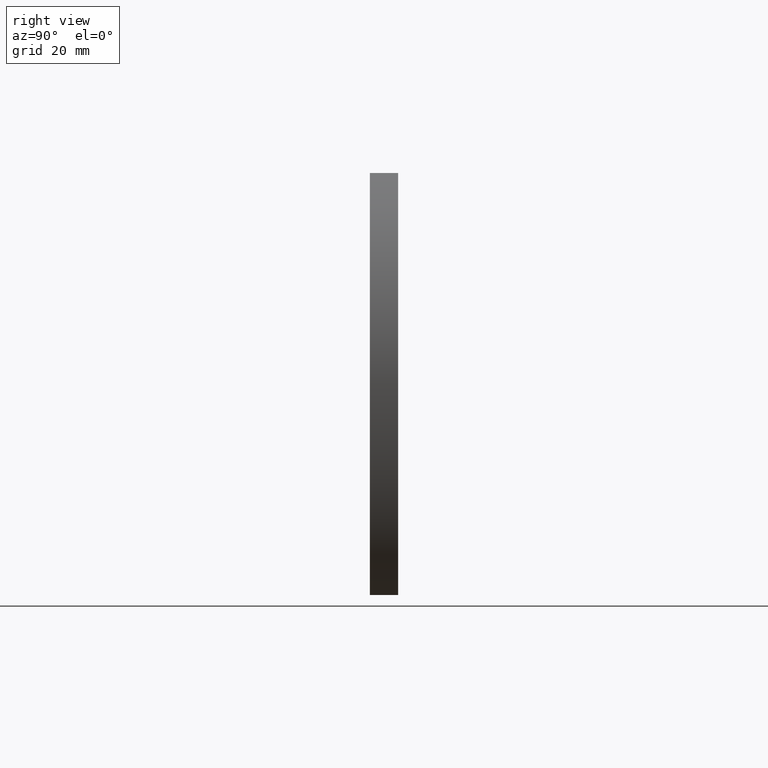
[diagram: clean part render]
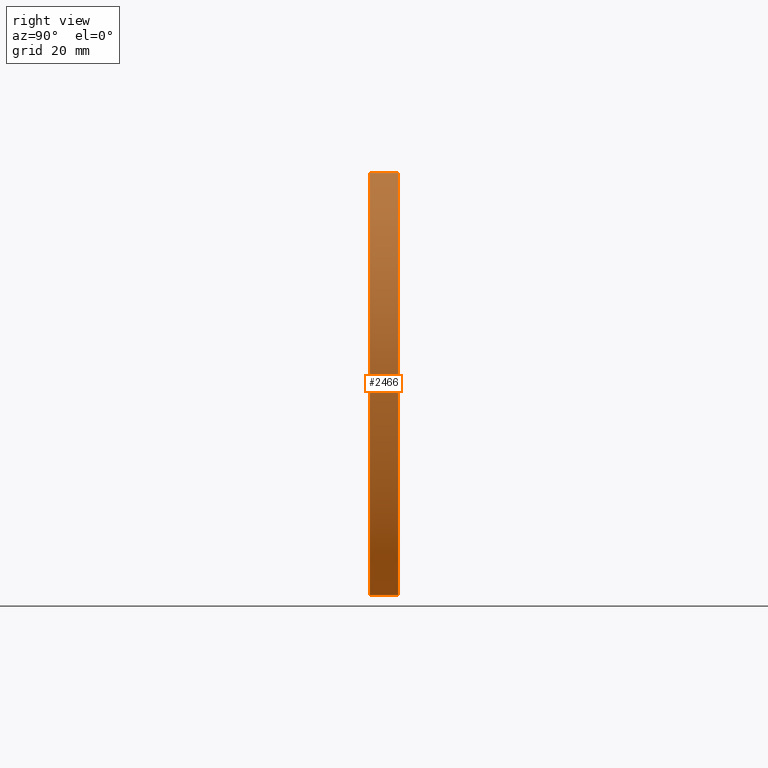
[diagram: same view with one face highlighted and labeled with its STEP entity id]
A machine part, right view. The second image highlights one B-rep face of the part: STEP entity #2466.
In plain terms, the highlighted cylindrical surface (partial cylindrical patch) has radius 94.4709 mm, axis along (-0, -1, -0).
Its self-contained STEP definition (entity closure, byte-faithful):
#387 = CARTESIAN_POINT ( 'NONE',  ( 63.49999999999998600, 8.000000000000000000, 60.00000000000002800 ) ) ;
#463 = VERTEX_POINT ( 'NONE', #1040 ) ;
#723 = CARTESIAN_POINT ( 'NONE',  ( -9.470930232558071500, 0.0000000000000000000, 0.0000000000000000000 ) ) ;
#877 = DIRECTION ( 'NONE',  ( 0.0000000000000000000, 1.000000000000000000, -0.0000000000000000000 ) ) ;
#1040 = CARTESIAN_POINT ( 'NONE',  ( 63.50000000000001400, 0.0000000000000000000, -59.99999999999997200 ) ) ;
#1106 = VERTEX_POINT ( 'NONE', #4754 ) ;
#1409 = LINE ( 'NONE', #7651, #9926 ) ;
#1824 = CIRCLE ( 'NONE', #3167, 94.47093023255808900 ) ;
#2466 = ADVANCED_FACE ( 'NONE', ( #6155 ), #9479, .T. ) ;
#2568 = DIRECTION ( 'NONE',  ( -0.0000000000000000000, -1.000000000000000000, -0.0000000000000000000 ) ) ;
#2570 = DIRECTION ( 'NONE',  ( 0.0000000000000000000, 0.0000000000000000000, -1.000000000000000000 ) ) ;
#2887 = ORIENTED_EDGE ( 'NONE', *, *, #8786, .T. ) ;
#3167 = AXIS2_PLACEMENT_3D ( 'NONE', #723, #877, #2570 ) ;
#3301 = AXIS2_PLACEMENT_3D ( 'NONE', #5023, #9353, #8446 ) ;
#3358 = LINE ( 'NONE', #6132, #6559 ) ;
#3612 = ORIENTED_EDGE ( 'NONE', *, *, #8766, .F. ) ;
#3835 = DIRECTION ( 'NONE',  ( -0.0000000000000000000, -1.000000000000000000, -0.0000000000000000000 ) ) ;
#4277 = VERTEX_POINT ( 'NONE', #5519 ) ;
#4754 = CARTESIAN_POINT ( 'NONE',  ( 63.50000000000001400, 8.000000000000000000, -59.99999999999997200 ) ) ;
#4768 = ORIENTED_EDGE ( 'NONE', *, *, #7713, .T. ) ;
#5023 = CARTESIAN_POINT ( 'NONE',  ( -9.470930232558071500, 8.000000000000000000, 0.0000000000000000000 ) ) ;
#5109 = DIRECTION ( 'NONE',  ( -0.0000000000000000000, -1.000000000000000000, -0.0000000000000000000 ) ) ;
#5189 = EDGE_CURVE ( 'NONE', #1106, #463, #3358, .T. ) ;
#5519 = CARTESIAN_POINT ( 'NONE',  ( 63.49999999999998600, 0.0000000000000000000, 60.00000000000002800 ) ) ;
#6132 = CARTESIAN_POINT ( 'NONE',  ( 63.50000000000001400, 8.000000000000000000, -59.99999999999997200 ) ) ;
#6155 = FACE_OUTER_BOUND ( 'NONE', #10168, .T. ) ;
#6559 = VECTOR ( 'NONE', #5109, 1000.000000000000000 ) ;
#7063 = DIRECTION ( 'NONE',  ( 0.0000000000000000000, 0.0000000000000000000, -1.000000000000000000 ) ) ;
#7651 = CARTESIAN_POINT ( 'NONE',  ( 63.49999999999998600, 8.000000000000000000, 60.00000000000002800 ) ) ;
#7713 = EDGE_CURVE ( 'NONE', #4277, #463, #1824, .T. ) ;
#8446 = DIRECTION ( 'NONE',  ( 0.0000000000000000000, 0.0000000000000000000, -1.000000000000000000 ) ) ;
#8766 = EDGE_CURVE ( 'NONE', #9362, #1106, #10462, .T. ) ;
#8786 = EDGE_CURVE ( 'NONE', #9362, #4277, #1409, .T. ) ;
#8936 = AXIS2_PLACEMENT_3D ( 'NONE', #10492, #3835, #7063 ) ;
#9353 = DIRECTION ( 'NONE',  ( 0.0000000000000000000, 1.000000000000000000, -0.0000000000000000000 ) ) ;
#9362 = VERTEX_POINT ( 'NONE', #387 ) ;
#9479 = CYLINDRICAL_SURFACE ( 'NONE', #8936, 94.47093023255808900 ) ;
#9633 = ORIENTED_EDGE ( 'NONE', *, *, #5189, .F. ) ;
#9926 = VECTOR ( 'NONE', #2568, 1000.000000000000000 ) ;
#10168 = EDGE_LOOP ( 'NONE', ( #4768, #9633, #3612, #2887 ) ) ;
#10462 = CIRCLE ( 'NONE', #3301, 94.47093023255808900 ) ;
#10492 = CARTESIAN_POINT ( 'NONE',  ( -9.470930232558071500, 8.000000000000000000, 0.0000000000000000000 ) ) ;